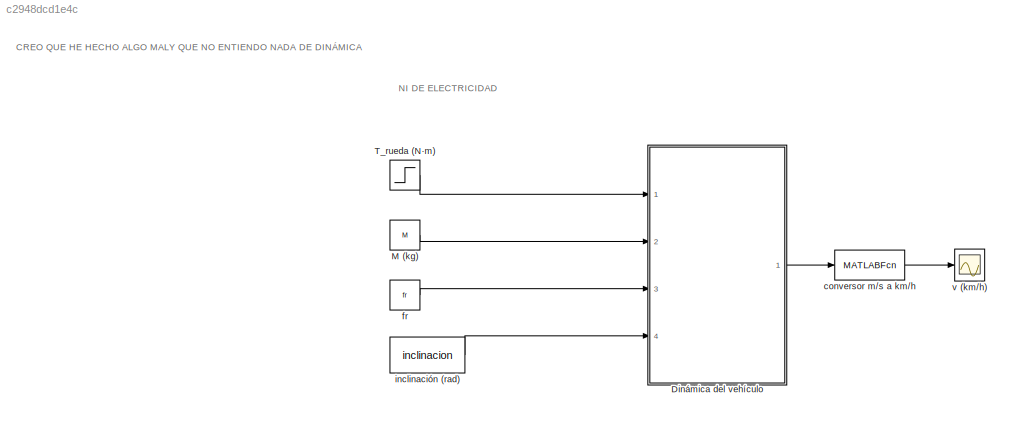
MODEL slx_c2948dcd1e4c
KIND model
CONFIG AbsTol = auto
CONFIG EnableMultiTasking = off
CONFIG FixedStep = auto
CONFIG MaxStep = auto
CONFIG MinStep = auto
CONFIG PreLoadFcn = Parametros_vehiculo
CONFIG RelTol = 1e-3
CONFIG SampleTimeConstraint = Unconstrained
CONFIG Solver = VariableStepAuto
CONFIG SolverName = VariableStepAuto
CONFIG StartTime = 0.0
CONFIG StopTime = 180
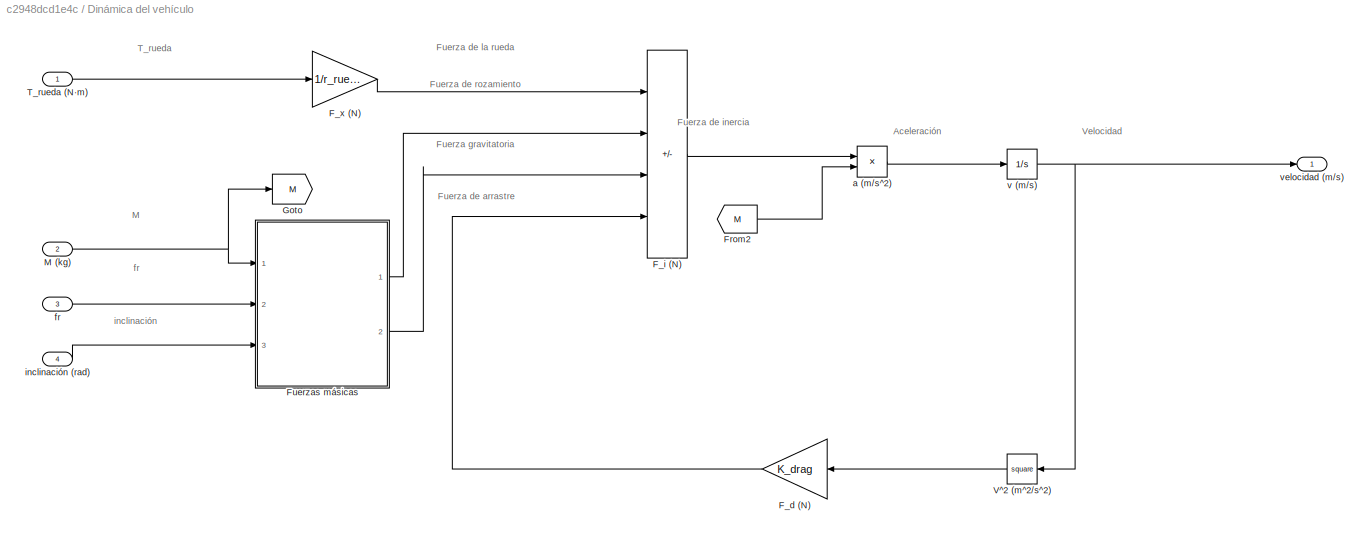
BLOCK [SubSystem] Dinámica del vehículo
  Ports = [4, 1]
  RequestExecContextInheritance = off
BLOCK [Gain] Dinámica del vehículo/F_d (N)
  Gain = K_drag
BLOCK [Sum] Dinámica del vehículo/F_i (N)
  IconShape = rectangular
  Inputs = +---
  Ports = [4, 1]
BLOCK [Gain] Dinámica del vehículo/F_x (N)
  Gain = 1/r_rueda
BLOCK [From] Dinámica del vehículo/From2
  GotoTag = M
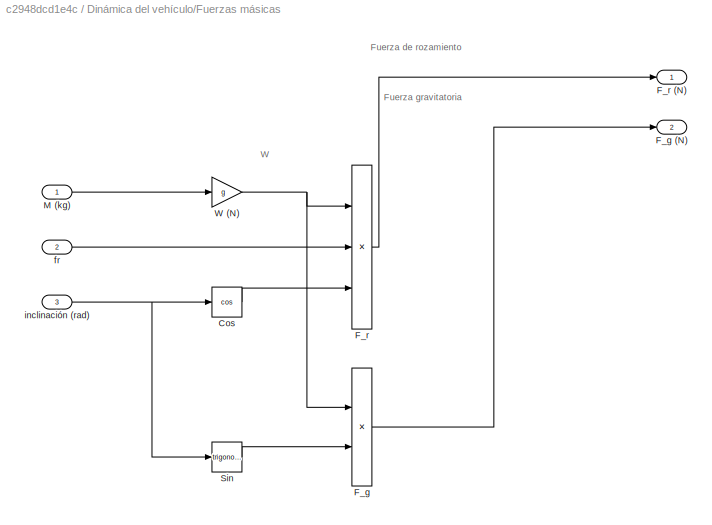
BLOCK [SubSystem] Dinámica del vehículo/Fuerzas másicas
  Ports = [3, 2]
  RequestExecContextInheritance = off
BLOCK [Trigonometry] Dinámica del vehículo/Fuerzas másicas/Cos
  Operator = cos
  Ports = [1, 1]
BLOCK [Product] Dinámica del vehículo/Fuerzas másicas/F_g
  Ports = [2, 1]
BLOCK [Outport] Dinámica del vehículo/Fuerzas másicas/F_g (N)
  Port = 2
BLOCK [Product] Dinámica del vehículo/Fuerzas másicas/F_r
  Inputs = 3
  Ports = [3, 1]
BLOCK [Outport] Dinámica del vehículo/Fuerzas másicas/F_r (N)
BLOCK [Inport] Dinámica del vehículo/Fuerzas másicas/M (kg)
BLOCK [Trigonometry] Dinámica del vehículo/Fuerzas másicas/Sin
  Ports = [1, 1]
BLOCK [Gain] Dinámica del vehículo/Fuerzas másicas/W (N)
  Gain = g
BLOCK [Inport] Dinámica del vehículo/Fuerzas másicas/fr
  Port = 2
BLOCK [Inport] Dinámica del vehículo/Fuerzas másicas/inclinación (rad)
  Port = 3
BLOCK [Goto] Dinámica del vehículo/Goto
  GotoTag = M
BLOCK [Inport] Dinámica del vehículo/M (kg)
  Port = 2
BLOCK [Inport] Dinámica del vehículo/T_rueda (N·m)
BLOCK [Math] Dinámica del vehículo/V^2 (m^2//s^2)
  Operator = square
  Ports = [1, 1]
BLOCK [Product] Dinámica del vehículo/a (m//s^2)
  Inputs = */
  Ports = [2, 1]
BLOCK [Inport] Dinámica del vehículo/fr
  Port = 3
BLOCK [Inport] Dinámica del vehículo/inclinación (rad)
  Port = 4
BLOCK [Integrator] Dinámica del vehículo/v (m//s)
  InitialCondition = v0
  Ports = [1, 1]
BLOCK [Outport] Dinámica del vehículo/velocidad (m//s)
BLOCK [Constant] M (kg)
  Value = M
BLOCK [Step] T_rueda (N·m)
  After = Tf
  Before = T0
  SampleTime = 0
  Time = 10
BLOCK [MATLABFcn] conversor m//s a km//h
  MATLABFcn = ms2kmh
  OutputDimensions = 1
  Ports = [1, 1]
BLOCK [Constant] fr
  Value = fr
BLOCK [Constant] inclinación (rad)
  Value = inclinacion
BLOCK [Scope] v (km//h)
  Floating = off
  NumInputPorts = 1
  Ports = [1]
  ScopeSpecificationString = Simulink.scopes.TimeScopeBlockCfg('CurrentConfiguration', extmgr.ConfigurationSet(extmgr.Configuration('Core','General UI',true),extmgr.Configuration('Core','Source UI',true),extmgr.Configuration('Sources','WiredSimulink',true,'DataLogging',true,'DataLoggingVariableName','v','DataLoggingSaveFormat','Array'),extmgr.Configuration('Visuals','Time Domain',true,'SerializedDisplays',{struct('MinYLimReal...<+1474ch>
ANNOTATION (root): CREO QUE HE HECHO ALGO MALY QUE NO ENTIENDO NADA DE DINÁMICA
ANNOTATION (root): NI DE ELECTRICIDAD
ANNOTATION Dinámica del vehículo: Aceleración
ANNOTATION Dinámica del vehículo: Fuerza de arrastre
ANNOTATION Dinámica del vehículo: Fuerza de inercia
ANNOTATION Dinámica del vehículo: Fuerza de la rueda
ANNOTATION Dinámica del vehículo: Fuerza de rozamiento
ANNOTATION Dinámica del vehículo: Fuerza gravitatoria
ANNOTATION Dinámica del vehículo: M
ANNOTATION Dinámica del vehículo: T_rueda
ANNOTATION Dinámica del vehículo: Velocidad
ANNOTATION Dinámica del vehículo: fr
ANNOTATION Dinámica del vehículo: inclinación
ANNOTATION Dinámica del vehículo/Fuerzas másicas: Fuerza de rozamiento
ANNOTATION Dinámica del vehículo/Fuerzas másicas: Fuerza gravitatoria
ANNOTATION Dinámica del vehículo/Fuerzas másicas: W
LINE Dinámica del vehículo/F_d (N):1 -> Dinámica del vehículo/F_i (N):4
LINE Dinámica del vehículo/F_i (N):1 -> Dinámica del vehículo/a (m//s^2):1
LINE Dinámica del vehículo/F_x (N):1 -> Dinámica del vehículo/F_i (N):1
LINE Dinámica del vehículo/From2:1 -> Dinámica del vehículo/a (m//s^2):2
LINE Dinámica del vehículo/Fuerzas másicas/Cos:1 -> Dinámica del vehículo/Fuerzas másicas/F_r:3
LINE Dinámica del vehículo/Fuerzas másicas/F_g:1 -> Dinámica del vehículo/Fuerzas másicas/F_g (N):1
LINE Dinámica del vehículo/Fuerzas másicas/F_r:1 -> Dinámica del vehículo/Fuerzas másicas/F_r (N):1
LINE Dinámica del vehículo/Fuerzas másicas/M (kg):1 -> Dinámica del vehículo/Fuerzas másicas/W (N):1
LINE Dinámica del vehículo/Fuerzas másicas/Sin:1 -> Dinámica del vehículo/Fuerzas másicas/F_g:2
NET Dinámica del vehículo/Fuerzas másicas/W (N):1 -> Dinámica del vehículo/Fuerzas másicas/F_g:1, Dinámica del vehículo/Fuerzas másicas/F_r:1
LINE Dinámica del vehículo/Fuerzas másicas/fr:1 -> Dinámica del vehículo/Fuerzas másicas/F_r:2
NET Dinámica del vehículo/Fuerzas másicas/inclinación (rad):1 -> Dinámica del vehículo/Fuerzas másicas/Cos:1, Dinámica del vehículo/Fuerzas másicas/Sin:1
LINE Dinámica del vehículo/Fuerzas másicas:1 -> Dinámica del vehículo/F_i (N):2
LINE Dinámica del vehículo/Fuerzas másicas:2 -> Dinámica del vehículo/F_i (N):3
NET Dinámica del vehículo/M (kg):1 -> Dinámica del vehículo/Fuerzas másicas:1, Dinámica del vehículo/Goto:1
LINE Dinámica del vehículo/T_rueda (N·m):1 -> Dinámica del vehículo/F_x (N):1
LINE Dinámica del vehículo/V^2 (m^2//s^2):1 -> Dinámica del vehículo/F_d (N):1
LINE Dinámica del vehículo/a (m//s^2):1 -> Dinámica del vehículo/v (m//s):1
LINE Dinámica del vehículo/fr:1 -> Dinámica del vehículo/Fuerzas másicas:2
LINE Dinámica del vehículo/inclinación (rad):1 -> Dinámica del vehículo/Fuerzas másicas:3
NET Dinámica del vehículo/v (m//s):1 -> Dinámica del vehículo/V^2 (m^2//s^2):1, Dinámica del vehículo/velocidad (m//s):1
LINE Dinámica del vehículo:1 -> conversor m//s a km//h:1
LINE M (kg):1 -> Dinámica del vehículo:2
LINE T_rueda (N·m):1 -> Dinámica del vehículo:1
LINE conversor m//s a km//h:1 -> v (km//h):1
LINE fr:1 -> Dinámica del vehículo:3
LINE inclinación (rad):1 -> Dinámica del vehículo:4
note: NET lines group one-source signal fan-out (src -> all destinations, sorted); 1:1 wires keep LINE
